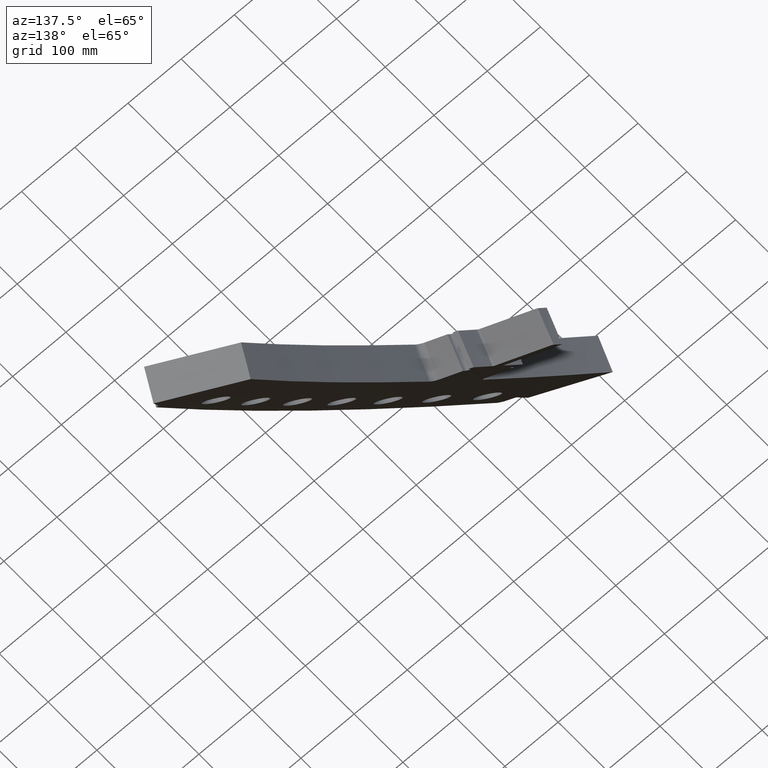
[diagram: clean part render]
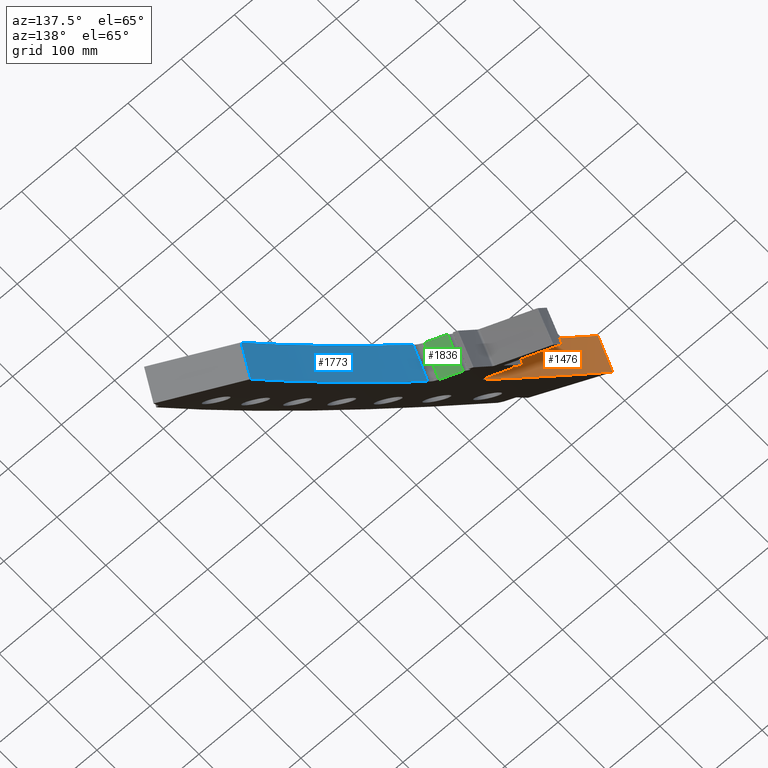
[diagram: same view with three faces highlighted in distinct colors, each labeled with its STEP entity id]
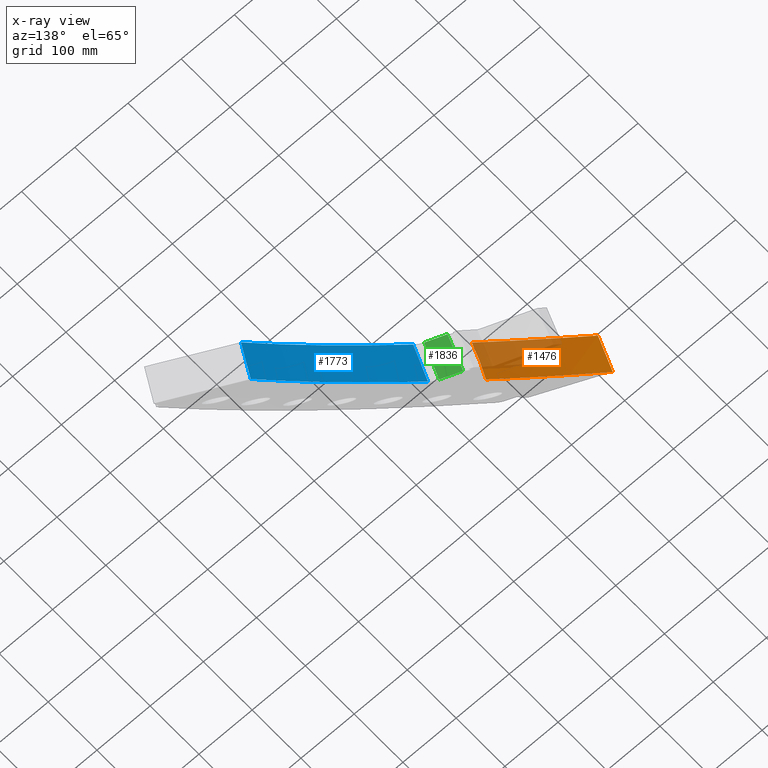
[diagram: x-ray of the same camera — body ghosted, the three highlighted faces saturated]
A machine part, auxiliary view with three faces highlighted in distinct colors.
The next image is the same camera in x-ray (body ghosted, the three faces saturated) — at least one of them is partly hidden behind the body in this view.
Their STEP definitions:

[orange] entity #1476 — the highlighted face is a freeform B-spline surface patch.
#79=CARTESIAN_POINT('',(7.409668651441E1,-2.027102156962E1,-4.906123088475E1));
#290=CARTESIAN_POINT('',(1.741432926344E1,3.700090175484E1,2.581892119302E1));
#291=DIRECTION('',(-4.779914505684E-1,-8.338858220672E-1,2.759684926560E-1));
#292=DIRECTION('',(4.478527061432E-1,-5.016502923434E-1,-7.401181917721E-1));
#293=AXIS2_PLACEMENT_3D('',#290,#291,#292);
#373=CARTESIAN_POINT('',(7.479459134201E1,-1.836811237201E1,-4.980261428167E1));
#383=CARTESIAN_POINT('',(2.714422113589E1,2.998235155062E1,1.376368856571E1));
#384=DIRECTION('',(-4.779914505684E-1,-8.338858220672E-1,2.759684926560E-1));
#385=DIRECTION('',(4.325150228009E-1,-4.969037334187E-1,-7.523413020472E-1));
#386=AXIS2_PLACEMENT_3D('',#383,#384,#385);
#644=CARTESIAN_POINT('',(7.409668651441E1,-2.027102156962E1,-4.906123088475E1));
#645=CARTESIAN_POINT('',(7.412428347556E1,-2.015144416096E1,-4.912053669991E1));
#646=CARTESIAN_POINT('',(7.418818178984E1,-1.991613212619E1,-4.922969428896E1));
#647=CARTESIAN_POINT('',(7.429620515954E1,-1.957519129578E1,-4.937572820975E1));
#648=CARTESIAN_POINT('',(7.441146194947E1,-1.925021465582E1,-4.950531969610E1));
#649=CARTESIAN_POINT('',(7.453310315261E1,-1.893841980642E1,-4.962105745953E1));
#650=CARTESIAN_POINT('',(7.465989431680E1,-1.864295091529E1,-4.972181953419E1));
#651=CARTESIAN_POINT('',(7.474829172371E1,-1.845762710091E1,-4.977817292353E1));
#652=CARTESIAN_POINT('',(7.479459134201E1,-1.836811237201E1,-4.980261428167E1));
#654=DIRECTION('',(3.198279338759E-1,9.043062039887E-1,-2.827373023502E-1));
#655=VECTOR('',#654,2.157382905281E0);
#656=CARTESIAN_POINT('',(6.667812693919E1,-1.818063040294E1,-5.559407990190E1));
#657=LINE('',#656,#655);
#844=CARTESIAN_POINT('',(6.667812693919E1,-1.818063040294E1,-5.559407990190E1));
#846=VERTEX_POINT('',#844);
#852=CARTESIAN_POINT('',(6.736811825637E1,-1.622969565731E1,-5.620405252468E1));
#854=VERTEX_POINT('',#852);
#936=VERTEX_POINT('',#79);
#961=VERTEX_POINT('',#373);
#1444=CARTESIAN_POINT('',(6.650627176902E1,-1.818808709200E1,
-5.570108403840E1));
#1445=CARTESIAN_POINT('',(6.674807051803E1,-1.750094987787E1,
-5.591481854859E1));
#1446=CARTESIAN_POINT('',(6.698986926705E1,-1.681381266374E1,
-5.612855305879E1));
#1447=CARTESIAN_POINT('',(6.723166801606E1,-1.612667544961E1,
-5.634228756899E1));
#1448=CARTESIAN_POINT('',(6.655721659024E1,-1.820363718532E1,
-5.565983227617E1));
#1449=CARTESIAN_POINT('',(6.679932815123E1,-1.751677401179E1,
-5.587385304051E1));
#1450=CARTESIAN_POINT('',(6.704143971221E1,-1.682991083826E1,
-5.608787380484E1));
#1451=CARTESIAN_POINT('',(6.728355127320E1,-1.614304766474E1,
-5.630189456917E1));
#1452=CARTESIAN_POINT('',(6.917164686820E1,-1.900049680079E1,
-5.353935330475E1));
#1453=CARTESIAN_POINT('',(6.942974351453E1,-1.832760155370E1,
-5.376789355880E1));
#1454=CARTESIAN_POINT('',(6.968784016085E1,-1.765470630660E1,
-5.399643381284E1));
#1455=CARTESIAN_POINT('',(6.994593680717E1,-1.698181105951E1,
-5.422497406688E1));
#1456=CARTESIAN_POINT('',(7.174557701746E1,-1.972493615072E1,
-5.127019244213E1));
#1457=CARTESIAN_POINT('',(7.201581686180E1,-1.906079080942E1,
-5.150413939146E1));
#1458=CARTESIAN_POINT('',(7.228605670614E1,-1.839664546811E1,
-5.173808634079E1));
#1459=CARTESIAN_POINT('',(7.255629655048E1,-1.773250012681E1,
-5.197203329011E1));
#1460=CARTESIAN_POINT('',(7.418734133283E1,-2.035197703531E1,
-4.893564346034E1));
#1461=CARTESIAN_POINT('',(7.446388600996E1,-1.969065630714E1,
-4.916720516882E1));
#1462=CARTESIAN_POINT('',(7.474043068708E1,-1.902933557898E1,
-4.939876687731E1));
#1463=CARTESIAN_POINT('',(7.501697536421E1,-1.836801485081E1,
-4.963032858579E1));
#1464=CARTESIAN_POINT('',(7.421861140070E1,-2.035999692971E1,
-4.890571559147E1));
#1465=CARTESIAN_POINT('',(7.449523593458E1,-1.969871144784E1,
-4.913724548665E1));
#1466=CARTESIAN_POINT('',(7.477186046847E1,-1.903742596596E1,
-4.936877538184E1));
#1467=CARTESIAN_POINT('',(7.504848500235E1,-1.837614048408E1,
-4.960030527702E1));
#1468=B_SPLINE_SURFACE_WITH_KNOTS('',3,3,((#1444,#1445,#1446,#1447),(#1448,
#1449,#1450,#1451),(#1452,#1453,#1454,#1455),(#1456,#1457,#1458,#1459),(#1460,
#1461,#1462,#1463),(#1464,#1465,#1466,#1467)),.UNSPECIFIED.,.F.,.F.,.F.,(4,1,1,
4),(4,4),(-1.986231720621E-2,0.E0,1.E0,1.012978177517E0),(-2.768638075507E-2,
1.027686380755E0),.UNSPECIFIED.);
#1469=ORIENTED_EDGE('',*,*,#1436,.F.);
#1470=ORIENTED_EDGE('',*,*,#1060,.F.);
#1472=ORIENTED_EDGE('',*,*,#1471,.T.);
#1473=ORIENTED_EDGE('',*,*,#1142,.T.);
#1474=EDGE_LOOP('',(#1469,#1470,#1472,#1473));
#1475=FACE_OUTER_BOUND('',#1474,.F.);
#1476=ADVANCED_FACE('',(#1475),#1468,.T.);
#294=CIRCLE('',#293,1.1E2);
#387=CIRCLE('',#386,9.3E1);
#653=B_SPLINE_CURVE_WITH_KNOTS('',3,(#644,#645,#646,#647,#648,#649,#650,#651,
#652),.UNSPECIFIED.,.F.,.F.,(4,1,1,1,1,1,4),(0.E0,1.666666666667E-1,
3.333333333333E-1,5.E-1,6.666666666667E-1,8.333333333333E-1,1.E0),
.UNSPECIFIED.);
#1060=EDGE_CURVE('',#846,#936,#294,.T.);
#1142=EDGE_CURVE('',#854,#961,#387,.T.);
#1436=EDGE_CURVE('',#936,#961,#653,.T.);
#1471=EDGE_CURVE('',#846,#854,#657,.T.);

[blue] entity #1773 — the highlighted face is a freeform B-spline surface patch.
#242=CARTESIAN_POINT('',(7.763834362520E1,-2.113849743220E1,-4.554812695146E1));
#252=CARTESIAN_POINT('',(2.602018066017E1,2.898041905185E1,1.648943797964E1));
#253=DIRECTION('',(-4.779914505684E-1,-8.338858220672E-1,2.759684926560E-1));
#254=DIRECTION('',(5.433490838424E-1,-5.275675419374E-1,-6.530269992748E-1));
#255=AXIS2_PLACEMENT_3D('',#252,#253,#254);
#421=CARTESIAN_POINT('',(2.672135276543E1,3.087302480238E1,1.572258005270E1));
#422=DIRECTION('',(-4.779914505684E-1,-8.338858220672E-1,2.759684926560E-1));
#423=DIRECTION('',(5.427387761414E-1,-5.274239538919E-1,-6.536502074761E-1));
#424=AXIS2_PLACEMENT_3D('',#421,#422,#423);
#434=CARTESIAN_POINT('',(7.828153649886E1,-1.923225081735E1,-4.637418965753E1));
#686=DIRECTION('',(4.637735945657E-1,8.699070794254E-1,-1.678562663387E-1));
#687=VECTOR('',#686,2.139105186755E0);
#688=CARTESIAN_POINT('',(8.857770471982E1,-2.309129389212E1,-3.250130496847E1));
#689=LINE('',#688,#687);
#690=CARTESIAN_POINT('',(7.828153649886E1,-1.923225081735E1,-4.637418965753E1));
#691=CARTESIAN_POINT('',(7.825005178617E1,-1.934098917644E1,-4.632264155992E1));
#692=CARTESIAN_POINT('',(7.817958898216E1,-1.956608128538E1,-4.622042916627E1));
#693=CARTESIAN_POINT('',(7.806092449536E1,-1.992599543321E1,-4.606209582162E1));
#694=CARTESIAN_POINT('',(7.793212048481E1,-2.030745056393E1,-4.589687083465E1));
#695=CARTESIAN_POINT('',(7.779348141791E1,-2.071033993347E1,-4.572457454474E1));
#696=CARTESIAN_POINT('',(7.769297937056E1,-2.099340976781E1,-4.560615800577E1));
#697=CARTESIAN_POINT('',(7.763834362520E1,-2.113849743220E1,-4.554812695146E1));
#847=CARTESIAN_POINT('',(8.857770471982E1,-2.309129389212E1,-3.250130496847E1));
#849=VERTEX_POINT('',#847);
#855=CARTESIAN_POINT('',(8.956976522144E1,-2.123047114653E1,-3.286036717842E1));
#857=VERTEX_POINT('',#855);
#960=VERTEX_POINT('',#242);
#986=VERTEX_POINT('',#434);
#1741=CARTESIAN_POINT('',(7.727290003322E1,-2.110910909607E1,
-4.587887249760E1));
#1742=CARTESIAN_POINT('',(7.753414311439E1,-2.044673392218E1,
-4.613390452773E1));
#1743=CARTESIAN_POINT('',(7.779538619556E1,-1.978435874828E1,
-4.638893655785E1));
#1744=CARTESIAN_POINT('',(7.805662927673E1,-1.912198357439E1,
-4.664396858797E1));
#1745=CARTESIAN_POINT('',(7.733415316921E1,-2.112369069440E1,
-4.581683973780E1));
#1746=CARTESIAN_POINT('',(7.759592535121E1,-2.046143348105E1,
-4.607131177632E1));
#1747=CARTESIAN_POINT('',(7.785769753320E1,-1.979917626771E1,
-4.632578381484E1));
#1748=CARTESIAN_POINT('',(7.811946971520E1,-1.913691905437E1,
-4.658025585335E1));
#1749=CARTESIAN_POINT('',(8.140626578026E1,-2.208981158491E1,
-4.168303268669E1));
#1750=CARTESIAN_POINT('',(8.170317061559E1,-2.143532758600E1,
-4.190014127646E1));
#1751=CARTESIAN_POINT('',(8.200007545092E1,-2.078084358708E1,
-4.211724986623E1));
#1752=CARTESIAN_POINT('',(8.229698028625E1,-2.012635958816E1,
-4.233435845600E1));
#1753=CARTESIAN_POINT('',(8.525557567449E1,-2.278037339068E1,
-3.710248253485E1));
#1754=CARTESIAN_POINT('',(8.558277783771E1,-2.212851487458E1,
-3.727504795705E1));
#1755=CARTESIAN_POINT('',(8.590998000093E1,-2.147665635848E1,
-3.744761337926E1));
#1756=CARTESIAN_POINT('',(8.623718216415E1,-2.082479784237E1,
-3.762017880146E1));
#1757=CARTESIAN_POINT('',(8.868418934140E1,-2.315771458264E1,
-3.230415016985E1));
#1758=CARTESIAN_POINT('',(8.903409601200E1,-2.250294544622E1,
-3.242859529648E1));
#1759=CARTESIAN_POINT('',(8.938400268260E1,-2.184817630979E1,
-3.255304042312E1));
#1760=CARTESIAN_POINT('',(8.973390935320E1,-2.119340717337E1,
-3.267748554976E1));
#1761=CARTESIAN_POINT('',(8.875097185139E1,-2.316496465324E1,
-3.221038679312E1));
#1762=CARTESIAN_POINT('',(8.910131896455E1,-2.251013662868E1,
-3.233389111034E1));
#1763=CARTESIAN_POINT('',(8.945166607771E1,-2.185530860413E1,
-3.245739542756E1));
#1764=CARTESIAN_POINT('',(8.980201319087E1,-2.120048057957E1,
-3.258089974478E1));
#1765=B_SPLINE_SURFACE_WITH_KNOTS('',3,3,((#1741,#1742,#1743,#1744),(#1745,
#1746,#1747,#1748),(#1749,#1750,#1751,#1752),(#1753,#1754,#1755,#1756),(#1757,
#1758,#1759,#1760),(#1761,#1762,#1763,#1764)),.UNSPECIFIED.,.F.,.F.,.F.,(4,1,1,
4),(4,4),(-1.525499653183E-2,0.E0,1.E0,1.019906960716E0),(-2.771625692902E-2,
1.027716256929E0),.UNSPECIFIED.);
#1767=ORIENTED_EDGE('',*,*,#1766,.F.);
#1768=ORIENTED_EDGE('',*,*,#1160,.T.);
#1769=ORIENTED_EDGE('',*,*,#1734,.F.);
#1770=ORIENTED_EDGE('',*,*,#1042,.F.);
#1771=EDGE_LOOP('',(#1767,#1768,#1769,#1770));
#1772=FACE_OUTER_BOUND('',#1771,.F.);
#1773=ADVANCED_FACE('',(#1772),#1765,.T.);
#256=CIRCLE('',#255,9.5E1);
#425=CIRCLE('',#424,9.5E1);
#698=B_SPLINE_CURVE_WITH_KNOTS('',3,(#690,#691,#692,#693,#694,#695,#696,#697),
.UNSPECIFIED.,.F.,.F.,(4,1,1,1,1,4),(0.E0,2.E-1,4.E-1,6.E-1,8.E-1,1.E0),
.UNSPECIFIED.);
#1042=EDGE_CURVE('',#960,#849,#256,.T.);
#1160=EDGE_CURVE('',#986,#857,#425,.T.);
#1734=EDGE_CURVE('',#849,#857,#689,.T.);
#1766=EDGE_CURVE('',#986,#960,#698,.T.);

[green] entity #1836 — the highlighted face is a freeform B-spline surface patch.
#229=CARTESIAN_POINT('',(7.620335047534E1,-1.993183114175E1,-4.438746019840E1));
#235=CARTESIAN_POINT('',(7.707927071810E1,-2.085369455891E1,-4.565588922325E1));
#236=CARTESIAN_POINT('',(7.698096631477E1,-2.075022110437E1,-4.551349477099E1));
#237=CARTESIAN_POINT('',(7.678501119752E1,-2.054397043081E1,-4.522967743743E1));
#238=CARTESIAN_POINT('',(7.649303840671E1,-2.023668279598E1,-4.480686719901E1));
#239=CARTESIAN_POINT('',(7.629969564043E1,-2.003321639715E1,-4.452693830134E1));
#240=CARTESIAN_POINT('',(7.620335047534E1,-1.993183114175E1,-4.438746019840E1));
#436=CARTESIAN_POINT('',(7.682479774299E1,-1.799240120762E1,-4.515091834573E1));
#437=CARTESIAN_POINT('',(7.692341872897E1,-1.809619033002E1,-4.529371830499E1));
#438=CARTESIAN_POINT('',(7.712204543634E1,-1.830523065651E1,-4.558133772036E1));
#439=CARTESIAN_POINT('',(7.742413839843E1,-1.862317702735E1,-4.601882649492E1));
#440=CARTESIAN_POINT('',(7.762830153463E1,-1.883806498335E1,-4.631452614319E1));
#441=CARTESIAN_POINT('',(7.773107488667E1,-1.894623984021E1,-4.646338623741E1));
#447=CARTESIAN_POINT('',(7.682479774299E1,-1.799240120762E1,-4.515091834573E1));
#699=CARTESIAN_POINT('',(7.773107488667E1,-1.894623984021E1,-4.646338623741E1));
#700=CARTESIAN_POINT('',(7.769067564993E1,-1.905854914874E1,-4.642371088530E1));
#701=CARTESIAN_POINT('',(7.746119647427E1,-1.970226563700E1,-4.618817000799E1));
#702=CARTESIAN_POINT('',(7.724566863748E1,-2.033832591555E1,-4.590988195096E1));
#703=CARTESIAN_POINT('',(7.707927071810E1,-2.085369455891E1,-4.565588922325E1));
#705=CARTESIAN_POINT('',(7.682479774299E1,-1.799240120762E1,-4.515091834573E1));
#706=CARTESIAN_POINT('',(7.677012713056E1,-1.815212189519E1,-4.509930003521E1));
#707=CARTESIAN_POINT('',(7.655090525645E1,-1.880373799797E1,-4.487718588460E1));
#708=CARTESIAN_POINT('',(7.634724377974E1,-1.945085138894E1,-4.461080370850E1));
#709=CARTESIAN_POINT('',(7.620335047534E1,-1.993183114175E1,-4.438746019840E1));
#958=VERTEX_POINT('',#229);
#959=VERTEX_POINT('',#235);
#984=VERTEX_POINT('',#447);
#985=VERTEX_POINT('',#441);
#1808=CARTESIAN_POINT('',(7.680205749954E1,-1.793955173726E1,
-4.511429587306E1));
#1809=CARTESIAN_POINT('',(7.714591684312E1,-1.821867870797E1,
-4.560160438232E1));
#1810=CARTESIAN_POINT('',(7.748977618671E1,-1.849780567868E1,
-4.608891289158E1));
#1811=CARTESIAN_POINT('',(7.783363553029E1,-1.877693264939E1,
-4.657622140084E1));
#1812=CARTESIAN_POINT('',(7.674442077792E1,-1.810796588434E1,
-4.506030441309E1));
#1813=CARTESIAN_POINT('',(7.708588901929E1,-1.839028188976E1,
-4.554549100113E1));
#1814=CARTESIAN_POINT('',(7.742735726065E1,-1.867259789518E1,
-4.603067758916E1));
#1815=CARTESIAN_POINT('',(7.776882550202E1,-1.895491390060E1,
-4.651586417719E1));
#1816=CARTESIAN_POINT('',(7.651515195519E1,-1.879036342957E1,
-4.482880555113E1));
#1817=CARTESIAN_POINT('',(7.684689747828E1,-1.908522639751E1,
-4.530490399920E1));
#1818=CARTESIAN_POINT('',(7.717864300137E1,-1.938008936545E1,
-4.578100244727E1));
#1819=CARTESIAN_POINT('',(7.751038852446E1,-1.967495233339E1,
-4.625710089534E1));
#1820=CARTESIAN_POINT('',(7.630299565162E1,-1.946795784739E1,
-4.454874865005E1));
#1821=CARTESIAN_POINT('',(7.662510266356E1,-1.977374325522E1,
-4.501416755852E1));
#1822=CARTESIAN_POINT('',(7.694720967550E1,-2.007952866305E1,
-4.547958646698E1));
#1823=CARTESIAN_POINT('',(7.726931668745E1,-2.038531407088E1,
-4.594500537545E1));
#1824=CARTESIAN_POINT('',(7.615400418045E1,-1.996987278051E1,
-4.431361855613E1));
#1825=CARTESIAN_POINT('',(7.646925553238E1,-2.028329639845E1,
-4.477070601896E1));
#1826=CARTESIAN_POINT('',(7.678450688430E1,-2.059672001640E1,
-4.522779348178E1));
#1827=CARTESIAN_POINT('',(7.709975823623E1,-2.091014363434E1,
-4.568488094460E1));
#1828=B_SPLINE_SURFACE_WITH_KNOTS('',3,3,((#1808,#1809,#1810,#1811),(#1812,
#1813,#1814,#1815),(#1816,#1817,#1818,#1819),(#1820,#1821,#1822,#1823),(#1824,
#1825,#1826,#1827)),.UNSPECIFIED.,.F.,.F.,.F.,(4,1,4),(4,4),(4.727790288171E-1,
5.212996199750E-1,6.696022789843E-1),(-3.302711133710E-2,1.033027261037E0),
.UNSPECIFIED.);
#1829=ORIENTED_EDGE('',*,*,#1038,.T.);
#1831=ORIENTED_EDGE('',*,*,#1830,.F.);
#1832=ORIENTED_EDGE('',*,*,#1164,.T.);
#1833=ORIENTED_EDGE('',*,*,#1801,.T.);
#1834=EDGE_LOOP('',(#1829,#1831,#1832,#1833));
#1835=FACE_OUTER_BOUND('',#1834,.F.);
#1836=ADVANCED_FACE('',(#1835),#1828,.T.);
#241=B_SPLINE_CURVE_WITH_KNOTS('',3,(#235,#236,#237,#238,#239,#240),
.UNSPECIFIED.,.F.,.F.,(4,1,1,4),(0.E0,3.333333333333E-1,6.666666666667E-1,1.E0),
.UNSPECIFIED.);
#442=B_SPLINE_CURVE_WITH_KNOTS('',3,(#436,#437,#438,#439,#440,#441),
.UNSPECIFIED.,.F.,.F.,(4,1,1,4),(0.E0,3.333333333333E-1,6.666666666667E-1,1.E0),
.UNSPECIFIED.);
#704=B_SPLINE_CURVE_WITH_KNOTS('',3,(#699,#700,#701,#702,#703),.UNSPECIFIED.,
.F.,.F.,(4,1,4),(0.E0,1.741525716653E-1,1.E0),.UNSPECIFIED.);
#710=B_SPLINE_CURVE_WITH_KNOTS('',3,(#705,#706,#707,#708,#709),.UNSPECIFIED.,
.F.,.F.,(4,1,4),(0.E0,2.448329534360E-1,1.E0),.UNSPECIFIED.);
#1038=EDGE_CURVE('',#959,#958,#241,.T.);
#1164=EDGE_CURVE('',#984,#985,#442,.T.);
#1801=EDGE_CURVE('',#985,#959,#704,.T.);
#1830=EDGE_CURVE('',#984,#958,#710,.T.);